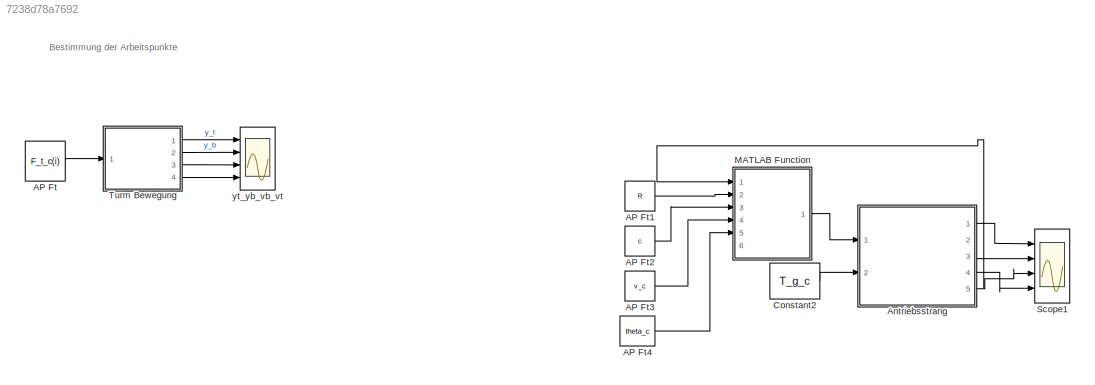
MODEL slx_7238d78a7692
KIND model
CONFIG AbsTol = auto
CONFIG FixedStep = auto
CONFIG MaxStep = auto
CONFIG MinStep = auto
CONFIG RelTol = 1e-3
CONFIG SampleTimeConstraint = Unconstrained
CONFIG Solver = VariableStepAuto
CONFIG SolverMode = SingleTasking
CONFIG SolverName = VariableStepAuto
CONFIG StartTime = 0.0
CONFIG StopTime = 500.0
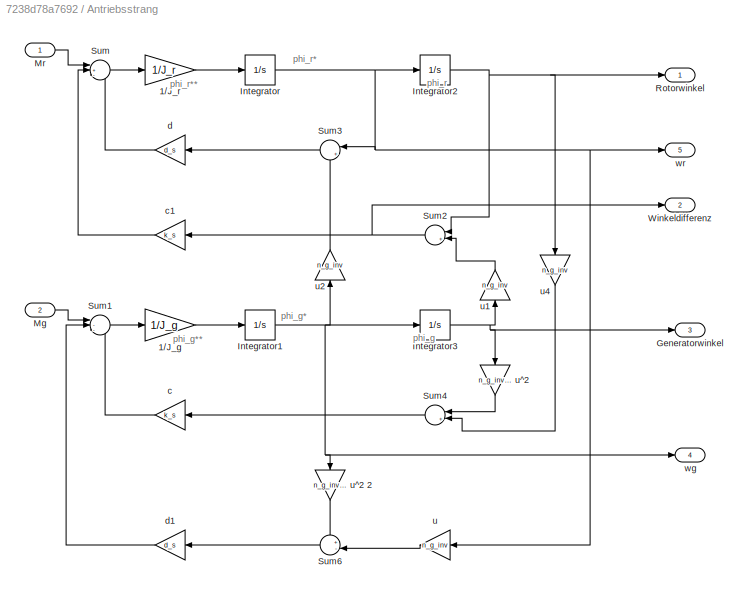
BLOCK [SubSystem]  Antriebsstrang
  Commented = on
  Ports = [2, 5]
  RequestExecContextInheritance = off
  Variant = off
BLOCK [Gain]  Antriebsstrang/1//J_g
  Gain = 1/J_g
  OutDataTypeStr = Inherit: Inherit via internal rule
  ParamDataTypeStr = Inherit: Inherit via internal rule
  SaturateOnIntegerOverflow = off
BLOCK [Gain]  Antriebsstrang/1//J_r
  Gain = 1/J_r
  OutDataTypeStr = Inherit: Inherit via internal rule
  ParamDataTypeStr = Inherit: Inherit via internal rule
  SaturateOnIntegerOverflow = off
BLOCK [Outport]  Antriebsstrang/Generatorwinkel
  IconDisplay = Port number
  Port = 3
BLOCK [Integrator]  Antriebsstrang/Integrator
  Ports = [1, 1]
BLOCK [Integrator]  Antriebsstrang/Integrator1
  Ports = [1, 1]
BLOCK [Integrator]  Antriebsstrang/Integrator2
  Ports = [1, 1]
BLOCK [Integrator]  Antriebsstrang/Integrator3
  Ports = [1, 1]
BLOCK [Inport]  Antriebsstrang/Mg
  IconDisplay = Port number
  Port = 2
BLOCK [Inport]  Antriebsstrang/Mr
  IconDisplay = Port number
BLOCK [Outport]  Antriebsstrang/Rotorwinkel
  IconDisplay = Port number
BLOCK [Sum]  Antriebsstrang/Sum
  IconShape = round
  InputSameDT = off
  Inputs = |+--
  OutDataTypeStr = Inherit: Inherit via internal rule
  Ports = [3, 1]
  SaturateOnIntegerOverflow = off
BLOCK [Sum]  Antriebsstrang/Sum1
  IconShape = round
  InputSameDT = off
  Inputs = |---
  OutDataTypeStr = Inherit: Inherit via internal rule
  Ports = [3, 1]
  SaturateOnIntegerOverflow = off
BLOCK [Sum]  Antriebsstrang/Sum2
  IconShape = round
  InputSameDT = off
  Inputs = |+-|
  OutDataTypeStr = Inherit: Inherit via internal rule
  Ports = [2, 1]
  SaturateOnIntegerOverflow = off
BLOCK [Sum]  Antriebsstrang/Sum3
  IconShape = round
  InputSameDT = off
  Inputs = |+-
  OutDataTypeStr = Inherit: Inherit via internal rule
  Ports = [2, 1]
  SaturateOnIntegerOverflow = off
BLOCK [Sum]  Antriebsstrang/Sum4
  IconShape = round
  InputSameDT = off
  Inputs = |+-|
  OutDataTypeStr = Inherit: Inherit via internal rule
  Ports = [2, 1]
  SaturateOnIntegerOverflow = off
BLOCK [Sum]  Antriebsstrang/Sum6
  IconShape = round
  InputSameDT = off
  Inputs = +-|
  OutDataTypeStr = Inherit: Inherit via internal rule
  Ports = [2, 1]
  SaturateOnIntegerOverflow = off
BLOCK [Outport]  Antriebsstrang/Winkeldifferenz
  IconDisplay = Port number
  Port = 2
BLOCK [Gain]  Antriebsstrang/c
  Gain = k_s
  OutDataTypeStr = Inherit: Inherit via internal rule
  ParamDataTypeStr = Inherit: Inherit via internal rule
  SaturateOnIntegerOverflow = off
BLOCK [Gain]  Antriebsstrang/c1
  Gain = k_s
  OutDataTypeStr = Inherit: Inherit via internal rule
  ParamDataTypeStr = Inherit: Inherit via internal rule
  SaturateOnIntegerOverflow = off
BLOCK [Gain]  Antriebsstrang/d
  Gain = d_s
  OutDataTypeStr = Inherit: Inherit via internal rule
  ParamDataTypeStr = Inherit: Inherit via internal rule
  SaturateOnIntegerOverflow = off
BLOCK [Gain]  Antriebsstrang/d1
  Gain = d_s
  OutDataTypeStr = Inherit: Inherit via internal rule
  ParamDataTypeStr = Inherit: Inherit via internal rule
  SaturateOnIntegerOverflow = off
BLOCK [Gain]  Antriebsstrang/u
  Gain = n_g_inv
  OutDataTypeStr = Inherit: Inherit via internal rule
  ParamDataTypeStr = Inherit: Inherit via internal rule
  SaturateOnIntegerOverflow = off
BLOCK [Gain]  Antriebsstrang/u1
  Gain = n_g_inv
  OutDataTypeStr = Inherit: Inherit via internal rule
  ParamDataTypeStr = Inherit: Inherit via internal rule
  SaturateOnIntegerOverflow = off
BLOCK [Gain]  Antriebsstrang/u2
  Gain = n_g_inv
  OutDataTypeStr = Inherit: Inherit via internal rule
  ParamDataTypeStr = Inherit: Inherit via internal rule
  SaturateOnIntegerOverflow = off
BLOCK [Gain]  Antriebsstrang/u4
  Gain = n_g_inv
  OutDataTypeStr = Inherit: Inherit via internal rule
  ParamDataTypeStr = Inherit: Inherit via internal rule
  SaturateOnIntegerOverflow = off
BLOCK [Gain]  Antriebsstrang/u^2
  Gain = n_g_inv^2
  OutDataTypeStr = Inherit: Inherit via internal rule
  ParamDataTypeStr = Inherit: Inherit via internal rule
  SaturateOnIntegerOverflow = off
BLOCK [Gain]  Antriebsstrang/u^2 2
  Gain = n_g_inv^2
  OutDataTypeStr = Inherit: Inherit via internal rule
  ParamDataTypeStr = Inherit: Inherit via internal rule
  SaturateOnIntegerOverflow = off
BLOCK [Outport]  Antriebsstrang/wg
  IconDisplay = Port number
  Port = 4
BLOCK [Outport]  Antriebsstrang/wr
  IconDisplay = Port number
  Port = 5
BLOCK [Constant] AP Ft
  Value = F_t_c(i)
BLOCK [Constant] AP Ft1
  Commented = on
  Value = R
BLOCK [Constant] AP Ft2
  Commented = on
  Value = c
BLOCK [Constant] AP Ft3
  Commented = on
  Value = v_c
BLOCK [Constant] AP Ft4
  Commented = on
  Value = theta_c
BLOCK [Constant] Constant2
  Commented = on
  Value = T_g_c
  VectorParams1D = off
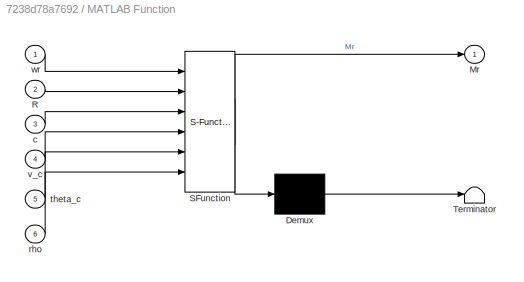
BLOCK [SubSystem] MATLAB Function
  Commented = on
  ErrorFcn = Stateflow.Translate.translate
  PermitHierarchicalResolution = ExplicitOnly
  Ports = [6, 1]
  RequestExecContextInheritance = off
  SFBlockType = MATLAB Function
  TreatAsAtomicUnit = on
  Variant = off
BLOCK [Demux] MATLAB Function/ Demux 
  Outputs = 1
  Ports = [1, 1]
BLOCK [S-Function] MATLAB Function/ SFunction 
  EnableBusSupport = on
  FunctionName = sf_sfun
  PortCounts = [6 2]
  Ports = [6, 2]
  SFunctionDeploymentMode = off
  Tag = Stateflow S-Function ErmittlungderAPs 2
BLOCK [Terminator] MATLAB Function/ Terminator 
BLOCK [Outport] MATLAB Function/Mr
  IconDisplay = Port number
BLOCK [Inport] MATLAB Function/R
  IconDisplay = Port number
  Port = 2
BLOCK [Inport] MATLAB Function/c
  IconDisplay = Port number
  Port = 3
BLOCK [Inport] MATLAB Function/rho
  IconDisplay = Port number
  Port = 6
BLOCK [Inport] MATLAB Function/theta_c
  IconDisplay = Port number
  Port = 5
BLOCK [Inport] MATLAB Function/v_c
  IconDisplay = Port number
  Port = 4
BLOCK [Inport] MATLAB Function/wr
  IconDisplay = Port number
BLOCK [Scope] Scope1
  Commented = on
  NumInputPorts = 4
  Ports = [4]
  ScopeSpecificationString = Simulink.scopes.TimeScopeBlockCfg('CurrentConfiguration', extmgr.ConfigurationSet(extmgr.Configuration('Core','General UI',true),extmgr.Configuration('Core','Source UI',true),extmgr.Configuration('Sources','WiredSimulink',true,'DataLoggingVariableName','ScopeData1'),extmgr.Configuration('Visuals','Time Domain',true,'SerializedDisplays',{struct('MinYLimReal','-13211.20703','MaxYLimReal','1467.91189...<+3457ch>
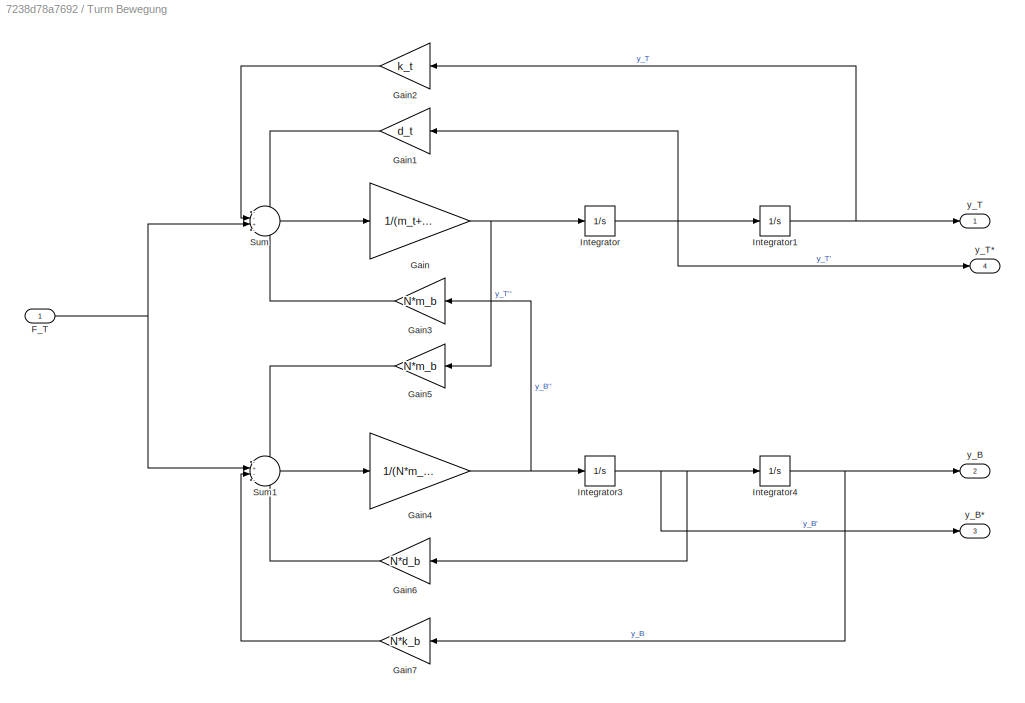
BLOCK [SubSystem] Turm Bewegung
  Ports = [1, 4]
  RequestExecContextInheritance = off
  Variant = off
BLOCK [Inport] Turm Bewegung/F_T
  IconDisplay = Port number
BLOCK [Gain] Turm Bewegung/Gain
  Gain = 1/(m_t+N*m_b)
  OutDataTypeStr = Inherit: Inherit via internal rule
  ParamDataTypeStr = Inherit: Inherit via internal rule
  SaturateOnIntegerOverflow = off
BLOCK [Gain] Turm Bewegung/Gain1
  Gain = d_t
  OutDataTypeStr = Inherit: Inherit via internal rule
  ParamDataTypeStr = Inherit: Inherit via internal rule
  SaturateOnIntegerOverflow = off
BLOCK [Gain] Turm Bewegung/Gain2
  Gain = k_t
  OutDataTypeStr = Inherit: Inherit via internal rule
  ParamDataTypeStr = Inherit: Inherit via internal rule
  SaturateOnIntegerOverflow = off
BLOCK [Gain] Turm Bewegung/Gain3
  Gain = N*m_b
  OutDataTypeStr = Inherit: Inherit via internal rule
  ParamDataTypeStr = Inherit: Inherit via internal rule
  SaturateOnIntegerOverflow = off
BLOCK [Gain] Turm Bewegung/Gain4
  Gain = 1/(N*m_b)
  OutDataTypeStr = Inherit: Inherit via internal rule
  ParamDataTypeStr = Inherit: Inherit via internal rule
  SaturateOnIntegerOverflow = off
BLOCK [Gain] Turm Bewegung/Gain5
  Gain = N*m_b
  OutDataTypeStr = Inherit: Inherit via internal rule
  ParamDataTypeStr = Inherit: Inherit via internal rule
  SaturateOnIntegerOverflow = off
BLOCK [Gain] Turm Bewegung/Gain6
  Gain = N*d_b
  OutDataTypeStr = Inherit: Inherit via internal rule
  ParamDataTypeStr = Inherit: Inherit via internal rule
  SaturateOnIntegerOverflow = off
BLOCK [Gain] Turm Bewegung/Gain7
  Gain = N*k_b
  OutDataTypeStr = Inherit: Inherit via internal rule
  ParamDataTypeStr = Inherit: Inherit via internal rule
  SaturateOnIntegerOverflow = off
BLOCK [Integrator] Turm Bewegung/Integrator
  Ports = [1, 1]
BLOCK [Integrator] Turm Bewegung/Integrator1
  Ports = [1, 1]
BLOCK [Integrator] Turm Bewegung/Integrator3
  Ports = [1, 1]
BLOCK [Integrator] Turm Bewegung/Integrator4
  Ports = [1, 1]
BLOCK [Sum] Turm Bewegung/Sum
  IconShape = round
  InputSameDT = off
  Inputs = --+-
  OutDataTypeStr = Inherit: Inherit via internal rule
  Ports = [4, 1]
  SaturateOnIntegerOverflow = off
BLOCK [Sum] Turm Bewegung/Sum1
  IconShape = round
  InputSameDT = off
  Inputs = -+--
  OutDataTypeStr = Inherit: Inherit via internal rule
  Ports = [4, 1]
  SaturateOnIntegerOverflow = off
BLOCK [Outport] Turm Bewegung/y_B
  IconDisplay = Port number
  Port = 2
BLOCK [Outport] Turm Bewegung/y_B*
  IconDisplay = Port number
  Port = 3
BLOCK [Outport] Turm Bewegung/y_T
  IconDisplay = Port number
BLOCK [Outport] Turm Bewegung/y_T*
  IconDisplay = Port number
  Port = 4
BLOCK [Scope] yt_yb_vb_vt
  NumInputPorts = 4
  Ports = [4]
  ScopeSpecificationString = Simulink.scopes.TimeScopeBlockCfg('CurrentConfiguration', extmgr.ConfigurationSet(extmgr.Configuration('Core','General UI',true),extmgr.Configuration('Core','Source UI',true),extmgr.Configuration('Sources','WiredSimulink',true),extmgr.Configuration('Visuals','Time Domain',true,'SerializedDisplays',{struct('MinYLimReal','-0.02789','MaxYLimReal','0.05778','YLabelReal','','MinYLimMag','0.00000','MaxY...<+3851ch>
ANNOTATION (root): Bestimmung der Arbeitspunkte
ANNOTATION  Antriebsstrang: phi_g
ANNOTATION  Antriebsstrang: phi_g*
ANNOTATION  Antriebsstrang: phi_g**
ANNOTATION  Antriebsstrang: phi_r
ANNOTATION  Antriebsstrang: phi_r*
ANNOTATION  Antriebsstrang: phi_r**
LINE  Antriebsstrang/1//J_g:1 ->  Antriebsstrang/Integrator1:1
LINE  Antriebsstrang/1//J_r:1 ->  Antriebsstrang/Integrator:1
NET  Antriebsstrang/Integrator1:1 ->  Antriebsstrang/Integrator3:1,  Antriebsstrang/u2:1,  Antriebsstrang/u^2 2:1,  Antriebsstrang/wg:1
NET  Antriebsstrang/Integrator2:1 ->  Antriebsstrang/Rotorwinkel:1,  Antriebsstrang/Sum2:1,  Antriebsstrang/u4:1
NET  Antriebsstrang/Integrator3:1 ->  Antriebsstrang/Generatorwinkel:1,  Antriebsstrang/u1:1,  Antriebsstrang/u^2:1
NET  Antriebsstrang/Integrator:1 ->  Antriebsstrang/Integrator2:1,  Antriebsstrang/Sum3:1,  Antriebsstrang/u:1,  Antriebsstrang/wr:1
LINE  Antriebsstrang/Mg:1 ->  Antriebsstrang/Sum1:1
LINE  Antriebsstrang/Mr:1 ->  Antriebsstrang/Sum:1
LINE  Antriebsstrang/Sum1:1 ->  Antriebsstrang/1//J_g:1
NET  Antriebsstrang/Sum2:1 ->  Antriebsstrang/Winkeldifferenz:1,  Antriebsstrang/c1:1
LINE  Antriebsstrang/Sum3:1 ->  Antriebsstrang/d:1
LINE  Antriebsstrang/Sum4:1 ->  Antriebsstrang/c:1
LINE  Antriebsstrang/Sum6:1 ->  Antriebsstrang/d1:1
LINE  Antriebsstrang/Sum:1 ->  Antriebsstrang/1//J_r:1
LINE  Antriebsstrang/c1:1 ->  Antriebsstrang/Sum:2
LINE  Antriebsstrang/c:1 ->  Antriebsstrang/Sum1:3
LINE  Antriebsstrang/d1:1 ->  Antriebsstrang/Sum1:2
LINE  Antriebsstrang/d:1 ->  Antriebsstrang/Sum:3
LINE  Antriebsstrang/u1:1 ->  Antriebsstrang/Sum2:2
LINE  Antriebsstrang/u2:1 ->  Antriebsstrang/Sum3:2
LINE  Antriebsstrang/u4:1 ->  Antriebsstrang/Sum4:2
LINE  Antriebsstrang/u:1 ->  Antriebsstrang/Sum6:2
LINE  Antriebsstrang/u^2 2:1 ->  Antriebsstrang/Sum6:1
LINE  Antriebsstrang/u^2:1 ->  Antriebsstrang/Sum4:1
LINE  Antriebsstrang:1 -> Scope1:1
LINE  Antriebsstrang:3 -> Scope1:2
LINE  Antriebsstrang:4 -> Scope1:4
NET  Antriebsstrang:5 -> MATLAB Function:1, Scope1:3
LINE AP Ft1:1 -> MATLAB Function:2
LINE AP Ft2:1 -> MATLAB Function:3
LINE AP Ft3:1 -> MATLAB Function:4
LINE AP Ft4:1 -> MATLAB Function:5
LINE AP Ft:1 -> Turm Bewegung:1
LINE Constant2:1 ->  Antriebsstrang:2
LINE MATLAB Function:1 ->  Antriebsstrang:1
NET Turm Bewegung/F_T:1 -> Turm Bewegung/Sum1:2, Turm Bewegung/Sum:3
LINE Turm Bewegung/Gain1:1 -> Turm Bewegung/Sum:1
LINE Turm Bewegung/Gain2:1 -> Turm Bewegung/Sum:2
LINE Turm Bewegung/Gain3:1 -> Turm Bewegung/Sum:4
NET Turm Bewegung/Gain4:1 -> Turm Bewegung/Gain3:1, Turm Bewegung/Integrator3:1
LINE Turm Bewegung/Gain5:1 -> Turm Bewegung/Sum1:1
LINE Turm Bewegung/Gain6:1 -> Turm Bewegung/Sum1:4
LINE Turm Bewegung/Gain7:1 -> Turm Bewegung/Sum1:3
NET Turm Bewegung/Gain:1 -> Turm Bewegung/Gain5:1, Turm Bewegung/Integrator:1
NET Turm Bewegung/Integrator1:1 -> Turm Bewegung/Gain2:1, Turm Bewegung/y_T:1
NET Turm Bewegung/Integrator3:1 -> Turm Bewegung/Gain6:1, Turm Bewegung/Integrator4:1, Turm Bewegung/y_B*:1
NET Turm Bewegung/Integrator4:1 -> Turm Bewegung/Gain7:1, Turm Bewegung/y_B:1
NET Turm Bewegung/Integrator:1 -> Turm Bewegung/Gain1:1, Turm Bewegung/Integrator1:1, Turm Bewegung/y_T*:1
LINE Turm Bewegung/Sum1:1 -> Turm Bewegung/Gain4:1
LINE Turm Bewegung/Sum:1 -> Turm Bewegung/Gain:1
LINE Turm Bewegung:1 -> yt_yb_vb_vt:1
LINE Turm Bewegung:2 -> yt_yb_vb_vt:2
LINE Turm Bewegung:3 -> yt_yb_vb_vt:3
LINE Turm Bewegung:4 -> yt_yb_vb_vt:4
note: NET lines group one-source signal fan-out (src -> all destinations, sorted); 1:1 wires keep LINE
CHART MATLAB Function states=1 transitions=1
  STATE_LABEL 'eML_blk_kernel()'
  STATE_LABEL 'SCRIPT:\nfunction Mr = fcn(wr,R,c,v_c,theta_c,rho)\nlambda_local=(wr*R)/v_c;\nlambda_i_local = (1/(lambda_local+(0.08*theta_c)))-(0.035/(c(11)+(c(12)*theta_c^3)));\nf_0_local = c(1)*(1+c(2)*(theta_c+c(3))^(1/2));\nf_1_local = c(4)/lambda_local;\nf_2_local = ((c(5)*lambda_i_local)-(c(6)*theta_c)-(c(7)*theta_c^c(8))-c(9));\nf_3_local = exp(-c(10)*lambda_i_local);\nCM_tilde_local =f_0_local+f_1_local*f_2_loc...<+110ch>'
